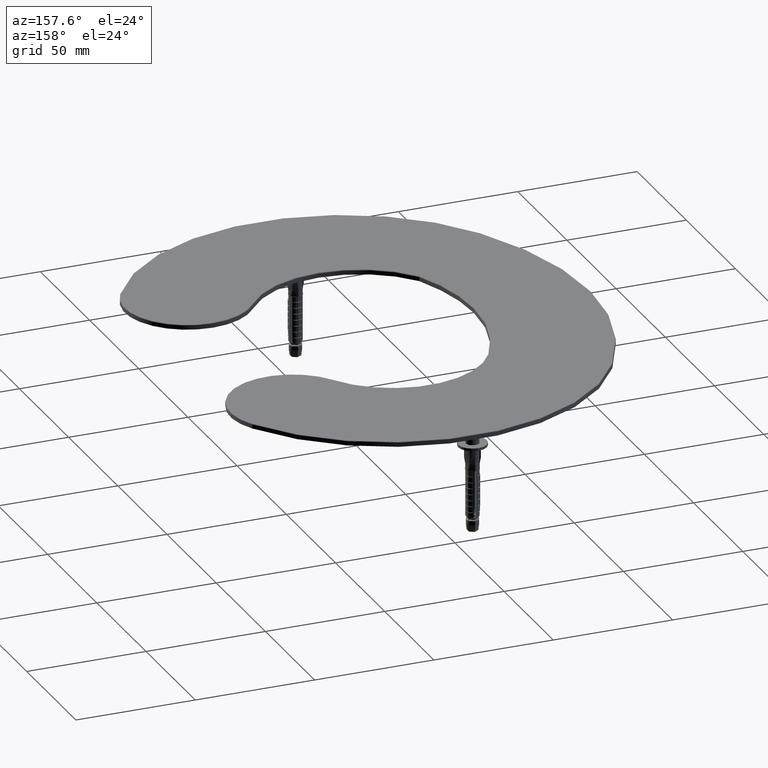
[diagram: clean part render]
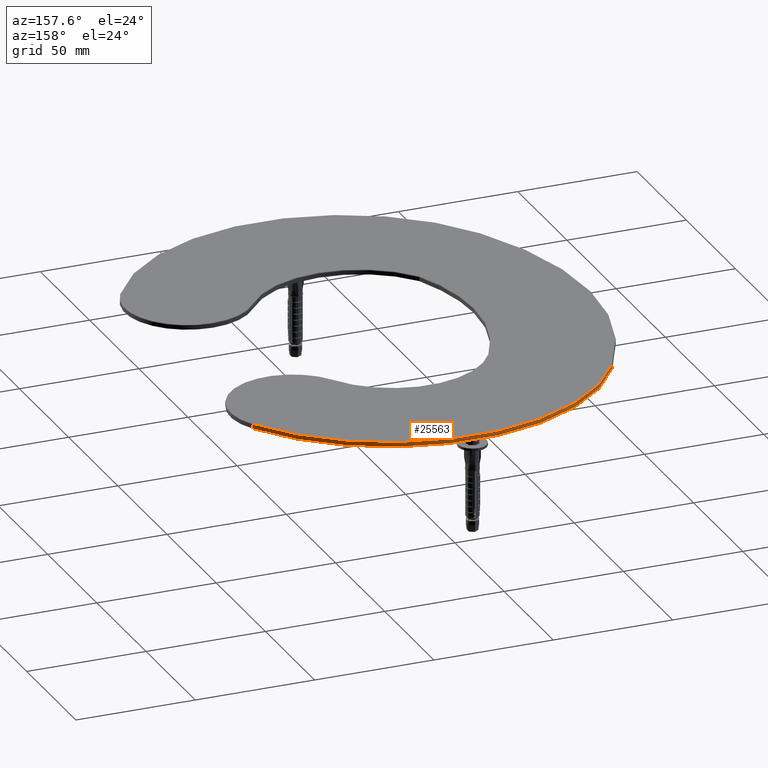
[diagram: same view with one face highlighted and labeled with its STEP entity id]
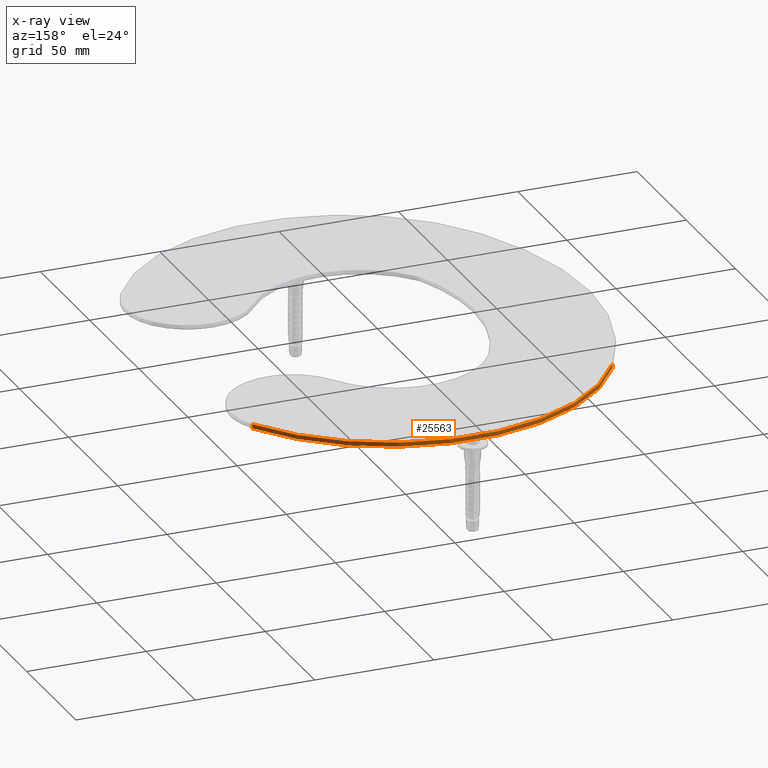
[diagram: x-ray of the same camera — body ghosted, the highlighted face saturated]
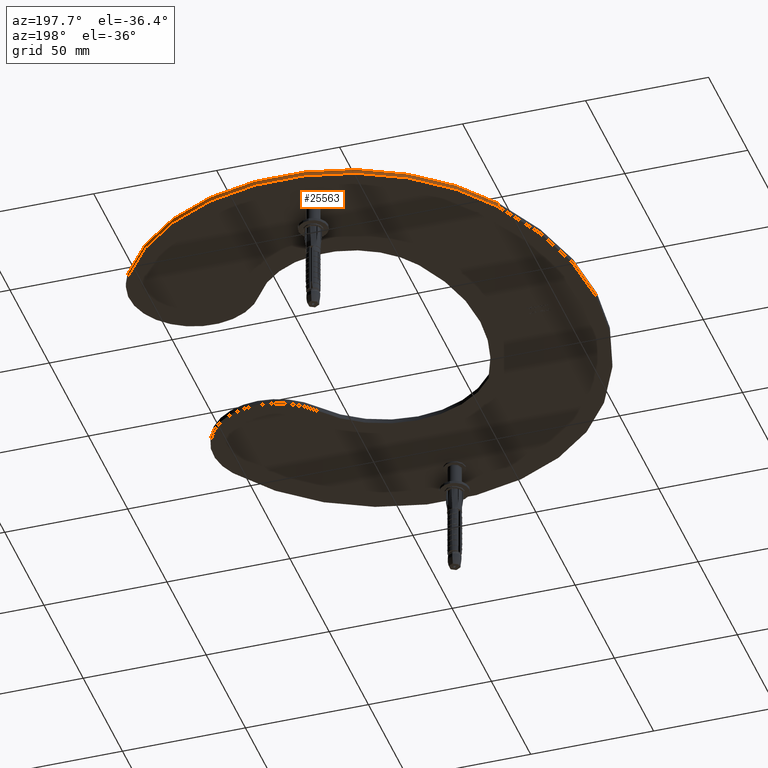
[diagram: same view with one face highlighted and labeled with its STEP entity id]
A machine part, auxiliary view. The second image highlights one B-rep face of the part: STEP entity #25563.
The next image is the same camera in x-ray: the body ghosted, the highlighted face saturated — about 0% of this face is hidden behind the body in this view.
A second angle (auxiliary view) of the same face is appended — the face is thin or edge-on in the first view.
In plain terms, the highlighted cylindrical surface (partial cylindrical patch) has radius 87.7691 mm, axis along (-0, -0, -1).
Its self-contained STEP definition (entity closure, byte-faithful):
#562 = CARTESIAN_POINT ( 'NONE',  ( 75.44167711727571657, 177.0858899930179291, 2.000000000000000000 ) ) ;
#1379 = EDGE_CURVE ( 'NONE', #6028, #34586, #28335, .T. ) ;
#1879 = ORIENTED_EDGE ( 'NONE', *, *, #24611, .T. ) ;
#2123 = AXIS2_PLACEMENT_3D ( 'NONE', #26260, #11215, #8437 ) ;
#2817 = EDGE_CURVE ( 'NONE', #8634, #34586, #27763, .T. ) ;
#2870 = CARTESIAN_POINT ( 'NONE',  ( 1.886394206557700430E-23, 132.2308783435891826, 2.000000000000000000 ) ) ;
#5044 = CYLINDRICAL_SURFACE ( 'NONE', #28039, 87.76912165640985108 ) ;
#6028 = VERTEX_POINT ( 'NONE', #9969 ) ;
#6300 = CARTESIAN_POINT ( 'NONE',  ( -75.44167711727570236, 177.0858899930179291, 1.750000000000000000 ) ) ;
#6508 = DIRECTION ( 'NONE',  ( -0.000000000000000000, -0.000000000000000000, -1.000000000000000000 ) ) ;
#8437 = DIRECTION ( 'NONE',  ( -1.000000000000000000, 0.000000000000000000, 0.000000000000000000 ) ) ;
#8634 = VERTEX_POINT ( 'NONE', #6300 ) ;
#9495 = LINE ( 'NONE', #562, #32066 ) ;
#9969 = CARTESIAN_POINT ( 'NONE',  ( 75.44167711727571657, 177.0858899930179291, 0.000000000000000000 ) ) ;
#10031 = VERTEX_POINT ( 'NONE', #12626 ) ;
#10184 = ORIENTED_EDGE ( 'NONE', *, *, #19779, .T. ) ;
#11215 = DIRECTION ( 'NONE',  ( -0.000000000000000000, -0.000000000000000000, -1.000000000000000000 ) ) ;
#12169 = ORIENTED_EDGE ( 'NONE', *, *, #1379, .T. ) ;
#12453 = DIRECTION ( 'NONE',  ( -0.000000000000000000, -0.000000000000000000, -1.000000000000000000 ) ) ;
#12626 = CARTESIAN_POINT ( 'NONE',  ( 75.44167711727571657, 177.0858899930179291, 1.750000000000000000 ) ) ;
#19779 = EDGE_CURVE ( 'NONE', #10031, #6028, #9495, .T. ) ;
#20673 = FACE_OUTER_BOUND ( 'NONE', #27366, .T. ) ;
#21396 = DIRECTION ( 'NONE',  ( 0.000000000000000000, 0.000000000000000000, 1.000000000000000000 ) ) ;
#21884 = CARTESIAN_POINT ( 'NONE',  ( -75.44167711727570236, 177.0858899930179291, 0.000000000000000000 ) ) ;
#22377 = DIRECTION ( 'NONE',  ( -1.000000000000000000, 0.000000000000000000, 0.000000000000000000 ) ) ;
#24174 = AXIS2_PLACEMENT_3D ( 'NONE', #33019, #21396, #22377 ) ;
#24611 = EDGE_CURVE ( 'NONE', #8634, #10031, #32295, .T. ) ;
#25563 = ADVANCED_FACE ( 'NONE', ( #20673 ), #5044, .T. ) ;
#26260 = CARTESIAN_POINT ( 'NONE',  ( 1.886394206557700430E-23, 132.2308783435891826, 1.750000000000000000 ) ) ;
#27175 = DIRECTION ( 'NONE',  ( -0.000000000000000000, -0.000000000000000000, -1.000000000000000000 ) ) ;
#27366 = EDGE_LOOP ( 'NONE', ( #35722, #1879, #10184, #12169 ) ) ;
#27763 = LINE ( 'NONE', #30580, #28727 ) ;
#28039 = AXIS2_PLACEMENT_3D ( 'NONE', #2870, #27175, #30275 ) ;
#28335 = CIRCLE ( 'NONE', #24174, 87.76912165640985108 ) ;
#28727 = VECTOR ( 'NONE', #12453, 1000.000000000000000 ) ;
#30275 = DIRECTION ( 'NONE',  ( -1.000000000000000000, 0.000000000000000000, 0.000000000000000000 ) ) ;
#30580 = CARTESIAN_POINT ( 'NONE',  ( -75.44167711727570236, 177.0858899930179291, 2.000000000000000000 ) ) ;
#32066 = VECTOR ( 'NONE', #6508, 1000.000000000000000 ) ;
#32295 = CIRCLE ( 'NONE', #2123, 87.76912165640985108 ) ;
#33019 = CARTESIAN_POINT ( 'NONE',  ( 1.886394206557700430E-23, 132.2308783435891826, 0.000000000000000000 ) ) ;
#34586 = VERTEX_POINT ( 'NONE', #21884 ) ;
#35722 = ORIENTED_EDGE ( 'NONE', *, *, #2817, .F. ) ;